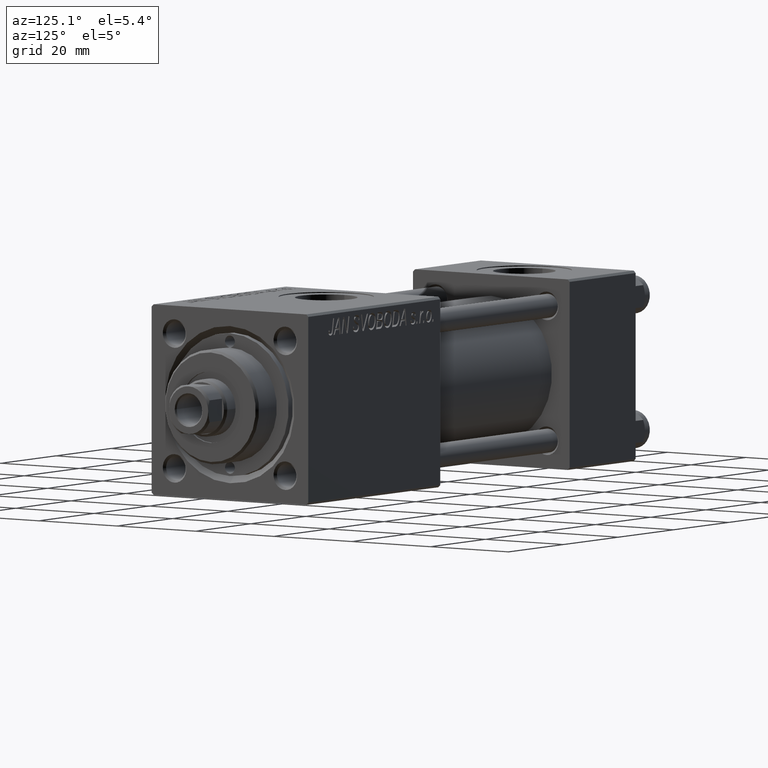
[diagram: clean part render]
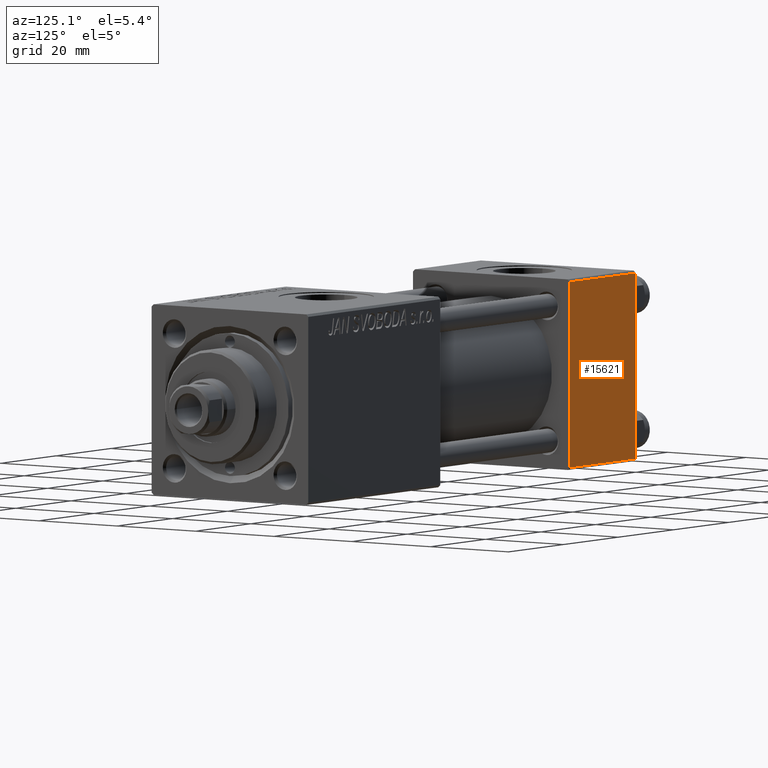
[diagram: same view with one face highlighted and labeled with its STEP entity id]
A machine part, auxiliary view. The second image highlights one B-rep face of the part: STEP entity #15621.
In plain terms, the highlighted planar face has unit normal (0, 1, 0).
Its self-contained STEP definition (entity closure, byte-faithful):
#600 = VERTEX_POINT ( 'NONE', #42450 ) ;
#2334 = VERTEX_POINT ( 'NONE', #16401 ) ;
#2607 = EDGE_CURVE ( 'NONE', #600, #12354, #19389, .T. ) ;
#7041 = AXIS2_PLACEMENT_3D ( 'NONE', #31734, #23566, #8834 ) ;
#7331 = LINE ( 'NONE', #18282, #11986 ) ;
#8834 = DIRECTION ( 'NONE',  ( 0.000000000000000000, -0.000000000000000000, 1.000000000000000000 ) ) ;
#10794 = LINE ( 'NONE', #48439, #49078 ) ;
#11986 = VECTOR ( 'NONE', #34064, 1000.000000000000000 ) ;
#12354 = VERTEX_POINT ( 'NONE', #14629 ) ;
#13116 = EDGE_CURVE ( 'NONE', #2334, #24549, #7331, .T. ) ;
#14341 = DIRECTION ( 'NONE',  ( 1.000000000000000000, 0.000000000000000000, 0.000000000000000000 ) ) ;
#14459 = ORIENTED_EDGE ( 'NONE', *, *, #13116, .T. ) ;
#14629 = CARTESIAN_POINT ( 'NONE',  ( 24.00000000000000000, 20.00000000000000000, 19.49999999999999289 ) ) ;
#15621 = ADVANCED_FACE ( 'NONE', ( #19245 ), #19761, .T. ) ;
#16401 = CARTESIAN_POINT ( 'NONE',  ( 24.00000000000000000, 20.00000000000000000, -19.50000000000002132 ) ) ;
#18282 = CARTESIAN_POINT ( 'NONE',  ( 24.00000000000000000, 20.00000000000000000, -19.50000000000002132 ) ) ;
#19245 = FACE_OUTER_BOUND ( 'NONE', #35056, .T. ) ;
#19389 = LINE ( 'NONE', #38726, #29115 ) ;
#19761 = PLANE ( 'NONE',  #7041 ) ;
#20169 = ORIENTED_EDGE ( 'NONE', *, *, #36781, .F. ) ;
#23566 = DIRECTION ( 'NONE',  ( -0.000000000000000000, 1.000000000000000000, 0.000000000000000000 ) ) ;
#24549 = VERTEX_POINT ( 'NONE', #32730 ) ;
#28280 = DIRECTION ( 'NONE',  ( 0.000000000000000000, 0.000000000000000000, -1.000000000000000000 ) ) ;
#28782 = LINE ( 'NONE', #40467, #46498 ) ;
#29115 = VECTOR ( 'NONE', #14341, 1000.000000000000000 ) ;
#31734 = CARTESIAN_POINT ( 'NONE',  ( 24.00000000000000000, 20.00000000000000000, 20.00000000000000000 ) ) ;
#32730 = CARTESIAN_POINT ( 'NONE',  ( 0.000000000000000000, 20.00000000000000000, -19.50000000000002132 ) ) ;
#34064 = DIRECTION ( 'NONE',  ( -1.000000000000000000, 0.000000000000000000, 0.000000000000000000 ) ) ;
#35056 = EDGE_LOOP ( 'NONE', ( #35100, #14459, #20169, #48014 ) ) ;
#35100 = ORIENTED_EDGE ( 'NONE', *, *, #48397, .T. ) ;
#36781 = EDGE_CURVE ( 'NONE', #600, #24549, #28782, .T. ) ;
#37258 = DIRECTION ( 'NONE',  ( 0.000000000000000000, 0.000000000000000000, -1.000000000000000000 ) ) ;
#38726 = CARTESIAN_POINT ( 'NONE',  ( 24.00000000000000000, 20.00000000000000000, 19.49999999999999289 ) ) ;
#40467 = CARTESIAN_POINT ( 'NONE',  ( 0.000000000000000000, 20.00000000000000000, 20.00000000000000000 ) ) ;
#42450 = CARTESIAN_POINT ( 'NONE',  ( 0.000000000000000000, 20.00000000000000000, 19.49999999999999289 ) ) ;
#46498 = VECTOR ( 'NONE', #28280, 1000.000000000000000 ) ;
#48014 = ORIENTED_EDGE ( 'NONE', *, *, #2607, .T. ) ;
#48397 = EDGE_CURVE ( 'NONE', #12354, #2334, #10794, .T. ) ;
#48439 = CARTESIAN_POINT ( 'NONE',  ( 24.00000000000000000, 20.00000000000000000, 20.00000000000000000 ) ) ;
#49078 = VECTOR ( 'NONE', #37258, 1000.000000000000000 ) ;